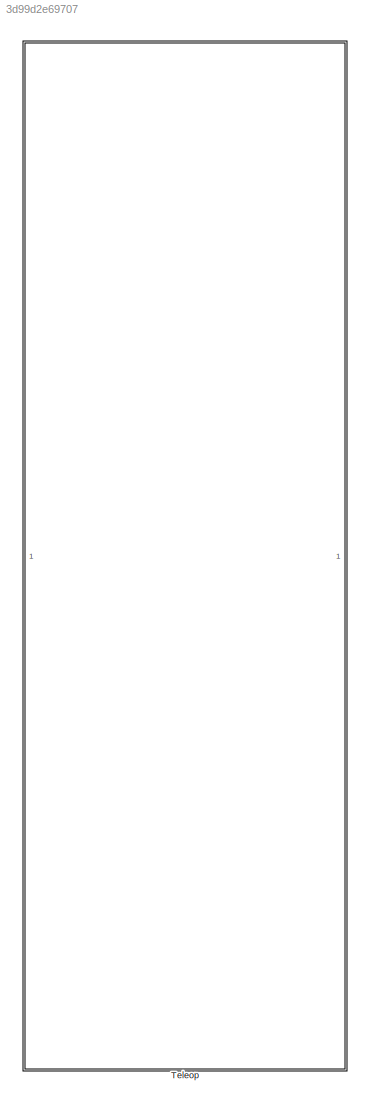
MODEL slx_3d99d2e69707
KIND library
CONFIG AbsTol = auto
CONFIG EnableMultiTasking = off
CONFIG FixedStep = auto
CONFIG MaxStep = auto
CONFIG MinStep = auto
CONFIG RelTol = 1e-3
CONFIG SampleTimeConstraint = Unconstrained
CONFIG SolverName = VariableStepAuto
CONFIG StartTime = 0.0
CONFIG StopTime = 10.0
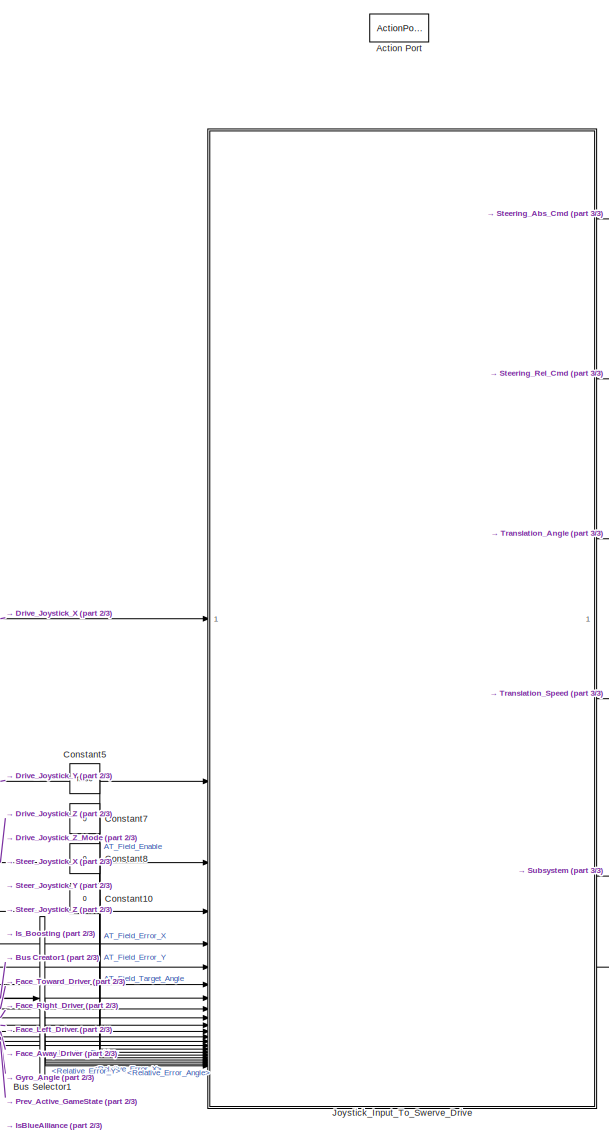
[diagram: Teleop - part 1/3, top center region]
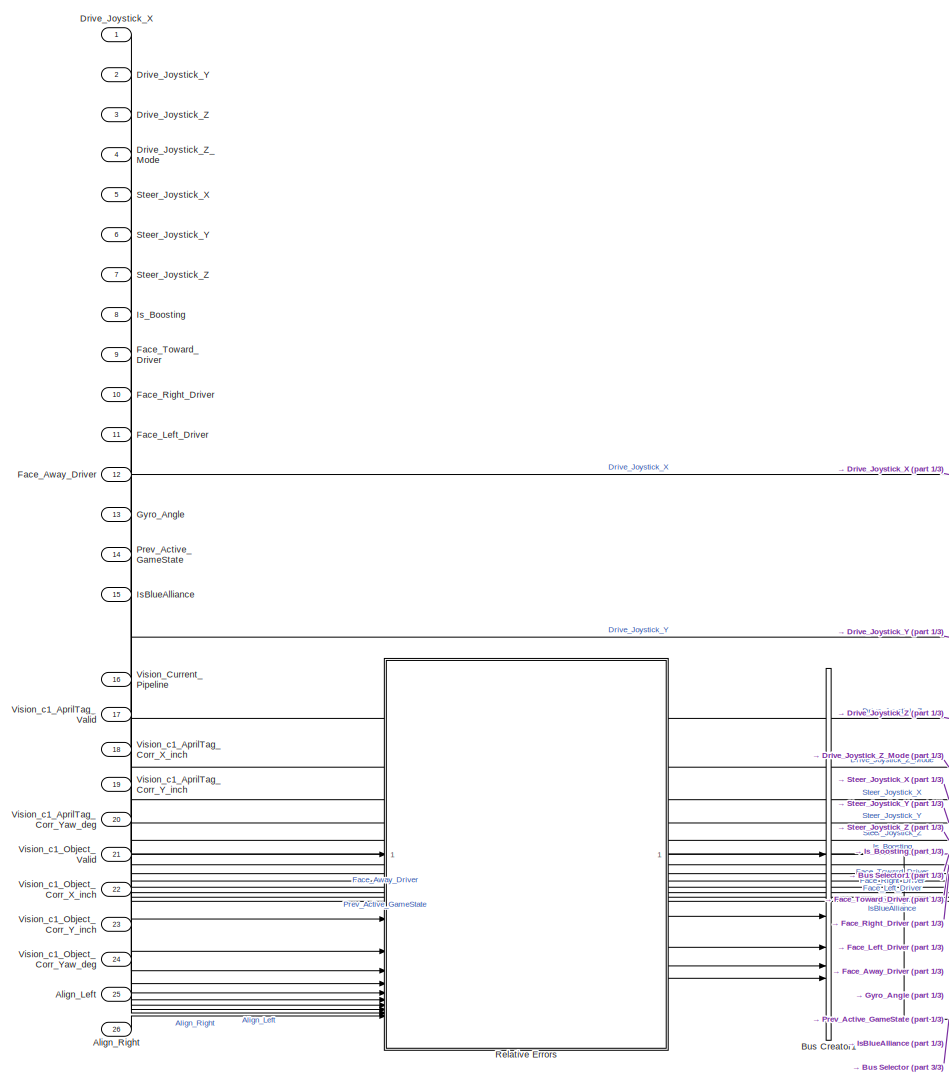
[diagram: Teleop - part 2/3, middle left region]
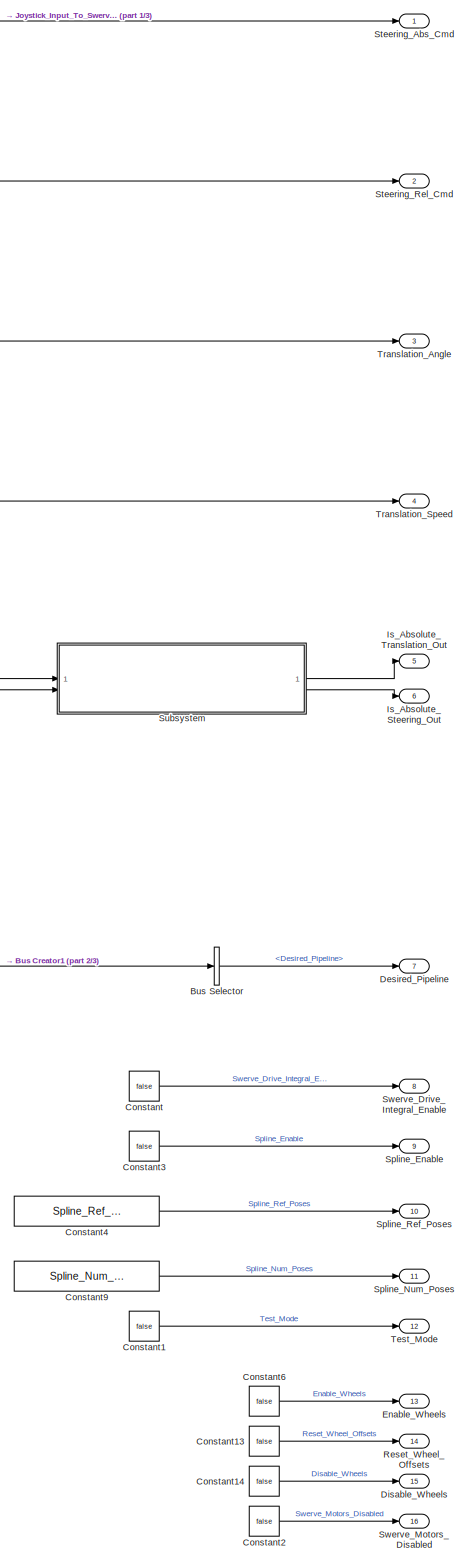
[diagram: Teleop - part 3/3, right side, full height]
BLOCK [SubSystem] Teleop
  TreatAsAtomicUnit = on
BLOCK [ActionPort] Teleop/Action Port
  InitializeStates = reset
BLOCK [Inport] Teleop/Align_Left
  Port = 25
BLOCK [Inport] Teleop/Align_Right
  Port = 26
BLOCK [BusCreator] Teleop/Bus Creator1
  DisplayOption = bar
  InheritFromInputs = on
  Inputs = 5
BLOCK [BusSelector] Teleop/Bus Selector
  OutputSignals = Desired_Pipeline
BLOCK [BusSelector] Teleop/Bus Selector1
  OutputSignals = Relative_Enable,Relative_Error_X,Relative_Error_Y,Relative_Error_Angle
BLOCK [Constant] Teleop/Constant
  OutDataTypeStr = boolean
  Value = false
BLOCK [Constant] Teleop/Constant1
  OutDataTypeStr = boolean
  Value = false
BLOCK [Constant] Teleop/Constant10
  Value = 0
BLOCK [Constant] Teleop/Constant13
  OutDataTypeStr = boolean
  Value = false
BLOCK [Constant] Teleop/Constant14
  OutDataTypeStr = boolean
  Value = false
BLOCK [Constant] Teleop/Constant2
  OutDataTypeStr = boolean
  Value = false
BLOCK [Constant] Teleop/Constant3
  OutDataTypeStr = boolean
  Value = false
BLOCK [Constant] Teleop/Constant4
  Value = Spline_Ref_Poses_default
BLOCK [Constant] Teleop/Constant5
  OutDataTypeStr = boolean
  Value = false
BLOCK [Constant] Teleop/Constant6
  OutDataTypeStr = boolean
  Value = false
BLOCK [Constant] Teleop/Constant7
  Value = 0
BLOCK [Constant] Teleop/Constant8
  Value = 0
BLOCK [Constant] Teleop/Constant9
  OutDataTypeStr = double
  Value = Spline_Num_Poses_default
BLOCK [Outport] Teleop/Desired_Pipeline
  Port = 7
BLOCK [Outport] Teleop/Disable_Wheels
  Port = 15
BLOCK [Inport] Teleop/Drive_Joystick_X
BLOCK [Inport] Teleop/Drive_Joystick_Y
  Port = 2
BLOCK [Inport] Teleop/Drive_Joystick_Z
  Port = 3
BLOCK [Inport] Teleop/Drive_Joystick_Z_Mode
  Port = 4
BLOCK [Outport] Teleop/Enable_Wheels
  Port = 13
BLOCK [Inport] Teleop/Face_Away_Driver
  Port = 12
BLOCK [Inport] Teleop/Face_Left_Driver
  Port = 11
BLOCK [Inport] Teleop/Face_Right_Driver
  Port = 10
BLOCK [Inport] Teleop/Face_Toward_Driver
  Port = 9
BLOCK [Inport] Teleop/Gyro_Angle
  Port = 13
BLOCK [Inport] Teleop/IsBlueAlliance
  Port = 15
BLOCK [Outport] Teleop/Is_Absolute_Steering_Out
  Port = 6
BLOCK [Outport] Teleop/Is_Absolute_Translation_Out
  Port = 5
BLOCK [Inport] Teleop/Is_Boosting
  Port = 8
BLOCK [SubSystem] Teleop/Joystick_Input_To_Swerve_Drive
  ReferencedSubsystem = Joystick_Input_To_Swerve_Drive_sub
BLOCK [Inport] Teleop/Prev_Active_GameState
  Port = 14
BLOCK [SubSystem] Teleop/Relative Errors
  ReferencedSubsystem = Vision_Relative_Errors_sub
BLOCK [Outport] Teleop/Reset_Wheel_Offsets
  Port = 14
BLOCK [Outport] Teleop/Spline_Enable
  Port = 9
BLOCK [Outport] Teleop/Spline_Num_Poses
  Port = 11
BLOCK [Outport] Teleop/Spline_Ref_Poses
  Port = 10
BLOCK [Inport] Teleop/Steer_Joystick_X
  Port = 5
BLOCK [Inport] Teleop/Steer_Joystick_Y
  Port = 6
BLOCK [Inport] Teleop/Steer_Joystick_Z
  Port = 7
BLOCK [Outport] Teleop/Steering_Abs_Cmd
BLOCK [Outport] Teleop/Steering_Rel_Cmd
  Port = 2
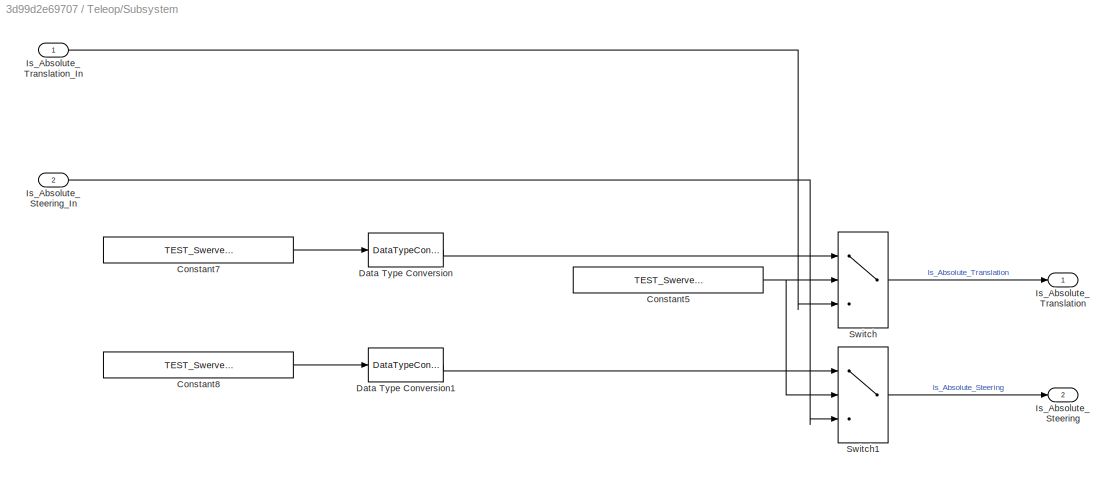
BLOCK [SubSystem] Teleop/Subsystem
BLOCK [Constant] Teleop/Subsystem/Constant5
  Value = TEST_Swerve_Mode_Override_Flag
BLOCK [Constant] Teleop/Subsystem/Constant7
  Value = TEST_Swerve_Mode_Translation
BLOCK [Constant] Teleop/Subsystem/Constant8
  Value = TEST_Swerve_Mode_Steering
BLOCK [DataTypeConversion] Teleop/Subsystem/Data Type Conversion
  RndMeth = Floor
  SaturateOnIntegerOverflow = off
BLOCK [DataTypeConversion] Teleop/Subsystem/Data Type Conversion1
  RndMeth = Floor
  SaturateOnIntegerOverflow = off
BLOCK [Outport] Teleop/Subsystem/Is_Absolute_Steering
  Port = 2
BLOCK [Inport] Teleop/Subsystem/Is_Absolute_Steering_In
  Port = 2
BLOCK [Outport] Teleop/Subsystem/Is_Absolute_Translation
BLOCK [Inport] Teleop/Subsystem/Is_Absolute_Translation_In
BLOCK [Switch] Teleop/Subsystem/Switch
  Criteria = u2 ~= 0
  InputSameDT = off
  SaturateOnIntegerOverflow = off
BLOCK [Switch] Teleop/Subsystem/Switch1
  Criteria = u2 ~= 0
  InputSameDT = off
  SaturateOnIntegerOverflow = off
BLOCK [Outport] Teleop/Swerve_Drive_Integral_Enable
  Port = 8
BLOCK [Outport] Teleop/Swerve_Motors_Disabled
  Port = 16
BLOCK [Outport] Teleop/Test_Mode
  Port = 12
BLOCK [Outport] Teleop/Translation_Angle
  Port = 3
BLOCK [Outport] Teleop/Translation_Speed
  Port = 4
BLOCK [Inport] Teleop/Vision_Current_Pipeline
  Port = 16
BLOCK [Inport] Teleop/Vision_c1_AprilTag_Corr_X_inch
  Port = 18
BLOCK [Inport] Teleop/Vision_c1_AprilTag_Corr_Y_inch
  Port = 19
BLOCK [Inport] Teleop/Vision_c1_AprilTag_Corr_Yaw_deg
  Port = 20
BLOCK [Inport] Teleop/Vision_c1_AprilTag_Valid
  Port = 17
BLOCK [Inport] Teleop/Vision_c1_Object_Corr_X_inch
  Port = 22
BLOCK [Inport] Teleop/Vision_c1_Object_Corr_Y_inch
  Port = 23
BLOCK [Inport] Teleop/Vision_c1_Object_Corr_Yaw_deg
  Port = 24
BLOCK [Inport] Teleop/Vision_c1_Object_Valid
  Port = 21
LINE Teleop/Align_Left:1 -> Teleop/Relative Errors:10
LINE Teleop/Align_Right:1 -> Teleop/Relative Errors:11
NET Teleop/Bus Creator1:1 -> Teleop/Bus Selector1:1, Teleop/Bus Selector:1
LINE Teleop/Bus Selector1:1 -> Teleop/Joystick_Input_To_Swerve_Drive:20
LINE Teleop/Bus Selector1:2 -> Teleop/Joystick_Input_To_Swerve_Drive:21
LINE Teleop/Bus Selector1:3 -> Teleop/Joystick_Input_To_Swerve_Drive:22
LINE Teleop/Bus Selector1:4 -> Teleop/Joystick_Input_To_Swerve_Drive:23
LINE Teleop/Bus Selector:1 -> Teleop/Desired_Pipeline:1
LINE Teleop/Constant10:1 -> Teleop/Joystick_Input_To_Swerve_Drive:19
LINE Teleop/Constant13:1 -> Teleop/Reset_Wheel_Offsets:1
LINE Teleop/Constant14:1 -> Teleop/Disable_Wheels:1
LINE Teleop/Constant1:1 -> Teleop/Test_Mode:1
LINE Teleop/Constant2:1 -> Teleop/Swerve_Motors_Disabled:1
LINE Teleop/Constant3:1 -> Teleop/Spline_Enable:1
LINE Teleop/Constant4:1 -> Teleop/Spline_Ref_Poses:1
LINE Teleop/Constant5:1 -> Teleop/Joystick_Input_To_Swerve_Drive:16
LINE Teleop/Constant6:1 -> Teleop/Enable_Wheels:1
LINE Teleop/Constant7:1 -> Teleop/Joystick_Input_To_Swerve_Drive:17
LINE Teleop/Constant8:1 -> Teleop/Joystick_Input_To_Swerve_Drive:18
LINE Teleop/Constant9:1 -> Teleop/Spline_Num_Poses:1
LINE Teleop/Constant:1 -> Teleop/Swerve_Drive_Integral_Enable:1
LINE Teleop/Drive_Joystick_X:1 -> Teleop/Joystick_Input_To_Swerve_Drive:1
LINE Teleop/Drive_Joystick_Y:1 -> Teleop/Joystick_Input_To_Swerve_Drive:2
LINE Teleop/Drive_Joystick_Z:1 -> Teleop/Joystick_Input_To_Swerve_Drive:3
LINE Teleop/Drive_Joystick_Z_Mode:1 -> Teleop/Joystick_Input_To_Swerve_Drive:4
LINE Teleop/Face_Away_Driver:1 -> Teleop/Joystick_Input_To_Swerve_Drive:12
LINE Teleop/Face_Left_Driver:1 -> Teleop/Joystick_Input_To_Swerve_Drive:11
LINE Teleop/Face_Right_Driver:1 -> Teleop/Joystick_Input_To_Swerve_Drive:10
LINE Teleop/Face_Toward_Driver:1 -> Teleop/Joystick_Input_To_Swerve_Drive:9
LINE Teleop/Gyro_Angle:1 -> Teleop/Joystick_Input_To_Swerve_Drive:13
LINE Teleop/IsBlueAlliance:1 -> Teleop/Joystick_Input_To_Swerve_Drive:15
LINE Teleop/Is_Boosting:1 -> Teleop/Joystick_Input_To_Swerve_Drive:8
LINE Teleop/Joystick_Input_To_Swerve_Drive:1 -> Teleop/Steering_Abs_Cmd:1
LINE Teleop/Joystick_Input_To_Swerve_Drive:2 -> Teleop/Steering_Rel_Cmd:1
LINE Teleop/Joystick_Input_To_Swerve_Drive:3 -> Teleop/Translation_Angle:1
LINE Teleop/Joystick_Input_To_Swerve_Drive:4 -> Teleop/Translation_Speed:1
LINE Teleop/Joystick_Input_To_Swerve_Drive:5 -> Teleop/Subsystem:1
LINE Teleop/Joystick_Input_To_Swerve_Drive:6 -> Teleop/Subsystem:2
LINE Teleop/Prev_Active_GameState:1 -> Teleop/Joystick_Input_To_Swerve_Drive:14
LINE Teleop/Relative Errors:1 -> Teleop/Bus Creator1:1
LINE Teleop/Relative Errors:2 -> Teleop/Bus Creator1:2
LINE Teleop/Relative Errors:3 -> Teleop/Bus Creator1:3
LINE Teleop/Relative Errors:4 -> Teleop/Bus Creator1:4
LINE Teleop/Relative Errors:5 -> Teleop/Bus Creator1:5
LINE Teleop/Steer_Joystick_X:1 -> Teleop/Joystick_Input_To_Swerve_Drive:5
LINE Teleop/Steer_Joystick_Y:1 -> Teleop/Joystick_Input_To_Swerve_Drive:6
LINE Teleop/Steer_Joystick_Z:1 -> Teleop/Joystick_Input_To_Swerve_Drive:7
NET Teleop/Subsystem/Constant5:1 -> Teleop/Subsystem/Switch1:2, Teleop/Subsystem/Switch:2
LINE Teleop/Subsystem/Constant7:1 -> Teleop/Subsystem/Data Type Conversion:1
LINE Teleop/Subsystem/Constant8:1 -> Teleop/Subsystem/Data Type Conversion1:1
LINE Teleop/Subsystem/Data Type Conversion1:1 -> Teleop/Subsystem/Switch1:1
LINE Teleop/Subsystem/Data Type Conversion:1 -> Teleop/Subsystem/Switch:1
LINE Teleop/Subsystem/Is_Absolute_Steering_In:1 -> Teleop/Subsystem/Switch1:3
LINE Teleop/Subsystem/Is_Absolute_Translation_In:1 -> Teleop/Subsystem/Switch:3
LINE Teleop/Subsystem/Switch1:1 -> Teleop/Subsystem/Is_Absolute_Steering:1
LINE Teleop/Subsystem/Switch:1 -> Teleop/Subsystem/Is_Absolute_Translation:1
LINE Teleop/Subsystem:1 -> Teleop/Is_Absolute_Translation_Out:1
LINE Teleop/Subsystem:2 -> Teleop/Is_Absolute_Steering_Out:1
LINE Teleop/Vision_Current_Pipeline:1 -> Teleop/Relative Errors:1
LINE Teleop/Vision_c1_AprilTag_Corr_X_inch:1 -> Teleop/Relative Errors:3
LINE Teleop/Vision_c1_AprilTag_Corr_Y_inch:1 -> Teleop/Relative Errors:4
LINE Teleop/Vision_c1_AprilTag_Corr_Yaw_deg:1 -> Teleop/Relative Errors:5
LINE Teleop/Vision_c1_AprilTag_Valid:1 -> Teleop/Relative Errors:2
LINE Teleop/Vision_c1_Object_Corr_X_inch:1 -> Teleop/Relative Errors:7
LINE Teleop/Vision_c1_Object_Corr_Y_inch:1 -> Teleop/Relative Errors:8
LINE Teleop/Vision_c1_Object_Corr_Yaw_deg:1 -> Teleop/Relative Errors:9
LINE Teleop/Vision_c1_Object_Valid:1 -> Teleop/Relative Errors:6
note: NET lines group one-source signal fan-out (src -> all destinations, sorted); 1:1 wires keep LINE
